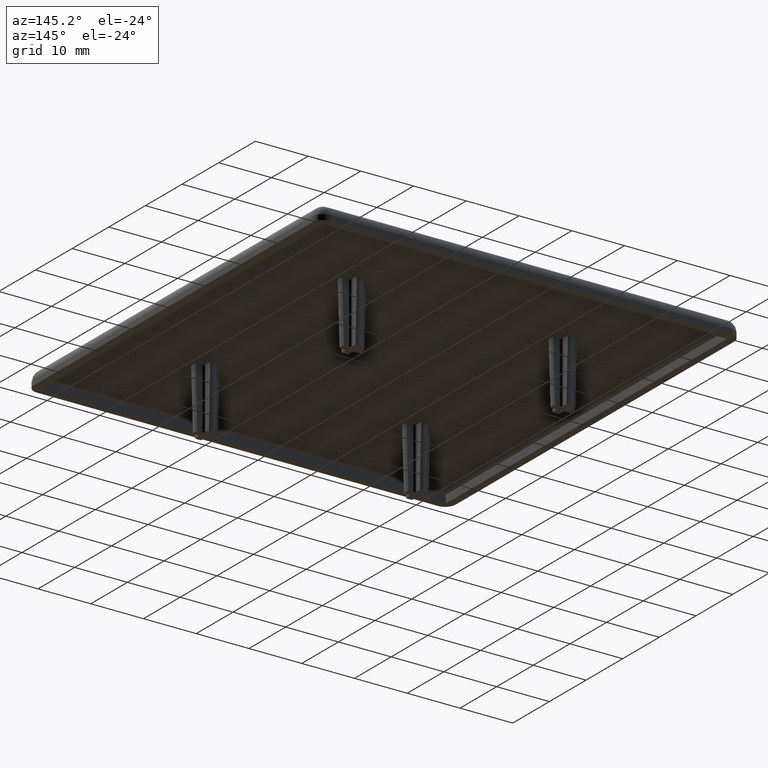
[diagram: clean part render]
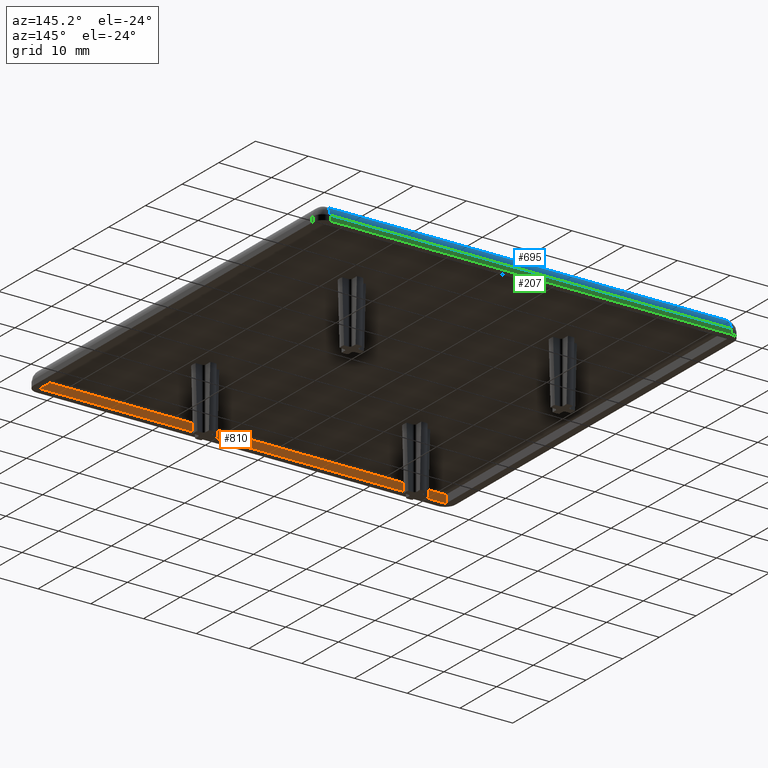
[diagram: same view with three faces highlighted in distinct colors, each labeled with its STEP entity id]
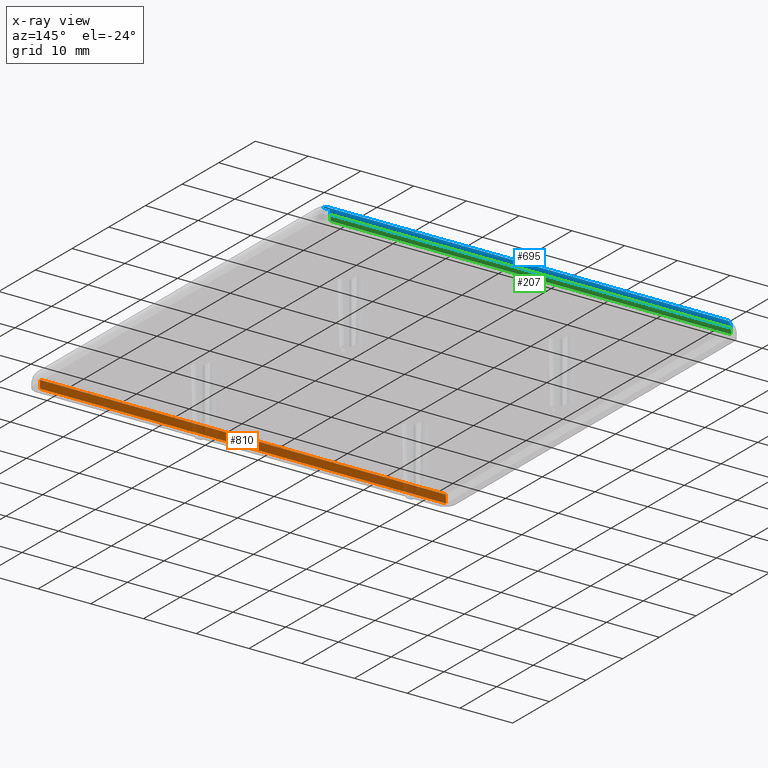
[diagram: x-ray of the same camera — body ghosted, the three highlighted faces saturated]
A machine part, auxiliary view with three faces highlighted in distinct colors.
The next image is the same camera in x-ray (body ghosted, the three faces saturated) — at least one of them is partly hidden behind the body in this view.
Their STEP definitions:

[orange] entity #810 — the highlighted planar face has unit normal (0, 1, 0).
#77=CARTESIAN_POINT('',(38.500000332846071,1.499999666993958,0.0));
#78=VERTEX_POINT('',#77);
#79=CARTESIAN_POINT('',(-38.500000332845957,1.499999666993958,0.0));
#80=VERTEX_POINT('',#79);
#81=CARTESIAN_POINT('',(38.500000332846071,1.499999666993958,0.0));
#82=DIRECTION('',(-1.0,0.0,0.0));
#83=VECTOR('',#82,77.000000665692028);
#84=LINE('',#81,#83);
#85=EDGE_CURVE('',#78,#80,#84,.T.);
#780=CARTESIAN_POINT('',(38.500000332846071,1.499999666993958,0.0));
#781=DIRECTION('',(0.0,1.0,0.0));
#782=DIRECTION('',(-1.0,0.0,0.0));
#783=AXIS2_PLACEMENT_3D('',#780,#781,#782);
#784=PLANE('',#783);
#785=CARTESIAN_POINT('',(38.500000332846071,1.499999666993958,1.500000000000000));
#786=VERTEX_POINT('',#785);
#787=CARTESIAN_POINT('',(38.500000332846071,1.499999666993958,0.0));
#788=DIRECTION('',(0.0,0.0,1.0));
#789=VECTOR('',#788,1.500000000000000);
#790=LINE('',#787,#789);
#791=EDGE_CURVE('',#78,#786,#790,.T.);
#792=ORIENTED_EDGE('',*,*,#791,.F.);
#793=ORIENTED_EDGE('',*,*,#85,.T.);
#794=CARTESIAN_POINT('',(-38.500000332845957,1.499999666993958,1.500000000000000));
#795=VERTEX_POINT('',#794);
#796=CARTESIAN_POINT('',(-38.500000332845957,1.499999666993958,0.0));
#797=DIRECTION('',(0.0,0.0,1.0));
#798=VECTOR('',#797,1.500000000000000);
#799=LINE('',#796,#798);
#800=EDGE_CURVE('',#80,#795,#799,.T.);
#801=ORIENTED_EDGE('',*,*,#800,.T.);
#802=CARTESIAN_POINT('',(38.500000332846071,1.499999666993958,1.500000000000000));
#803=DIRECTION('',(-1.0,0.0,0.0));
#804=VECTOR('',#803,77.000000665692028);
#805=LINE('',#802,#804);
#806=EDGE_CURVE('',#786,#795,#805,.T.);
#807=ORIENTED_EDGE('',*,*,#806,.F.);
#808=EDGE_LOOP('',(#792,#793,#801,#807));
#809=FACE_OUTER_BOUND('',#808,.T.);
#810=ADVANCED_FACE('',(#809),#784,.T.);

[blue] entity #695 — the highlighted cylindrical surface (edge-blend (fillet) strip) has radius 2 mm, axis along (1, 0, 0).
#117=CARTESIAN_POINT('',(37.999999999839936,79.999999999679886,0.999999333987962));
#118=VERTEX_POINT('',#117);
#151=CARTESIAN_POINT('',(37.999999999839936,77.999999999679886,2.999999333987962));
#152=VERTEX_POINT('',#151);
#159=CARTESIAN_POINT('',(-37.999999999839922,77.999999999679900,2.999999333987962));
#160=VERTEX_POINT('',#159);
#161=CARTESIAN_POINT('',(37.999999999839936,77.999999999679886,2.999999333987962));
#162=DIRECTION('',(-1.0,0.0,0.0));
#163=VECTOR('',#162,75.999999999679858);
#164=LINE('',#161,#163);
#165=EDGE_CURVE('',#152,#160,#164,.T.);
#190=CARTESIAN_POINT('',(-37.999999999839922,79.999999999679900,0.999999333987962));
#191=VERTEX_POINT('',#190);
#198=CARTESIAN_POINT('',(37.999999999839936,79.999999999679886,0.999999333987962));
#199=DIRECTION('',(-1.0,0.0,0.0));
#200=VECTOR('',#199,75.999999999679858);
#201=LINE('',#198,#200);
#202=EDGE_CURVE('',#118,#191,#201,.T.);
#667=CARTESIAN_POINT('',(-37.999999999839922,77.999999999679886,0.999999333987962));
#668=DIRECTION('',(-1.0,0.0,0.0));
#669=DIRECTION('',(0.0,1.0,0.0));
#670=AXIS2_PLACEMENT_3D('',#667,#668,#669);
#671=CIRCLE('',#670,2.000000000000001);
#672=EDGE_CURVE('',#160,#191,#671,.T.);
#678=CARTESIAN_POINT('',(37.999999999839936,77.999999999679886,0.999999333987962));
#679=DIRECTION('',(1.0,0.0,0.0));
#680=DIRECTION('',(0.0,1.0,0.0));
#681=AXIS2_PLACEMENT_3D('',#678,#679,#680);
#682=CYLINDRICAL_SURFACE('',#681,2.000000000000001);
#683=ORIENTED_EDGE('',*,*,#672,.F.);
#684=ORIENTED_EDGE('',*,*,#165,.F.);
#685=CARTESIAN_POINT('',(37.999999999839936,77.999999999679886,0.999999333987962));
#686=DIRECTION('',(1.0,0.0,0.0));
#687=DIRECTION('',(0.0,1.0,0.0));
#688=AXIS2_PLACEMENT_3D('',#685,#686,#687);
#689=CIRCLE('',#688,2.000000000000001);
#690=EDGE_CURVE('',#118,#152,#689,.T.);
#691=ORIENTED_EDGE('',*,*,#690,.F.);
#692=ORIENTED_EDGE('',*,*,#202,.T.);
#693=EDGE_LOOP('',(#683,#684,#691,#692));
#694=FACE_OUTER_BOUND('',#693,.T.);
#695=ADVANCED_FACE('',(#694),#682,.T.);

[green] entity #207 — the highlighted planar face has unit normal (0, 1, 0).
#43=CARTESIAN_POINT('',(-37.999999999839922,79.999999999679900,0.0));
#44=VERTEX_POINT('',#43);
#52=CARTESIAN_POINT('',(37.999999999839936,79.999999999679886,0.0));
#53=VERTEX_POINT('',#52);
#54=CARTESIAN_POINT('',(37.999999999839936,79.999999999679886,0.0));
#55=DIRECTION('',(-1.0,0.0,0.0));
#56=VECTOR('',#55,75.999999999679858);
#57=LINE('',#54,#56);
#58=EDGE_CURVE('',#53,#44,#57,.T.);
#117=CARTESIAN_POINT('',(37.999999999839936,79.999999999679886,0.999999333987962));
#118=VERTEX_POINT('',#117);
#119=CARTESIAN_POINT('',(37.999999999839936,79.999999999679886,0.0));
#120=DIRECTION('',(0.0,0.0,1.0));
#121=VECTOR('',#120,0.999999333987962);
#122=LINE('',#119,#121);
#123=EDGE_CURVE('',#53,#118,#122,.T.);
#184=CARTESIAN_POINT('',(39.999999999839936,79.999999999679886,0.0));
#185=DIRECTION('',(0.0,1.0,0.0));
#186=DIRECTION('',(-1.0,0.0,0.0));
#187=AXIS2_PLACEMENT_3D('',#184,#185,#186);
#188=PLANE('',#187);
#189=ORIENTED_EDGE('',*,*,#58,.T.);
#190=CARTESIAN_POINT('',(-37.999999999839922,79.999999999679900,0.999999333987962));
#191=VERTEX_POINT('',#190);
#192=CARTESIAN_POINT('',(-37.999999999839922,79.999999999679900,0.0));
#193=DIRECTION('',(0.0,0.0,1.0));
#194=VECTOR('',#193,0.999999333987962);
#195=LINE('',#192,#194);
#196=EDGE_CURVE('',#44,#191,#195,.T.);
#197=ORIENTED_EDGE('',*,*,#196,.T.);
#198=CARTESIAN_POINT('',(37.999999999839936,79.999999999679886,0.999999333987962));
#199=DIRECTION('',(-1.0,0.0,0.0));
#200=VECTOR('',#199,75.999999999679858);
#201=LINE('',#198,#200);
#202=EDGE_CURVE('',#118,#191,#201,.T.);
#203=ORIENTED_EDGE('',*,*,#202,.F.);
#204=ORIENTED_EDGE('',*,*,#123,.F.);
#205=EDGE_LOOP('',(#189,#197,#203,#204));
#206=FACE_OUTER_BOUND('',#205,.T.);
#207=ADVANCED_FACE('',(#206),#188,.T.);